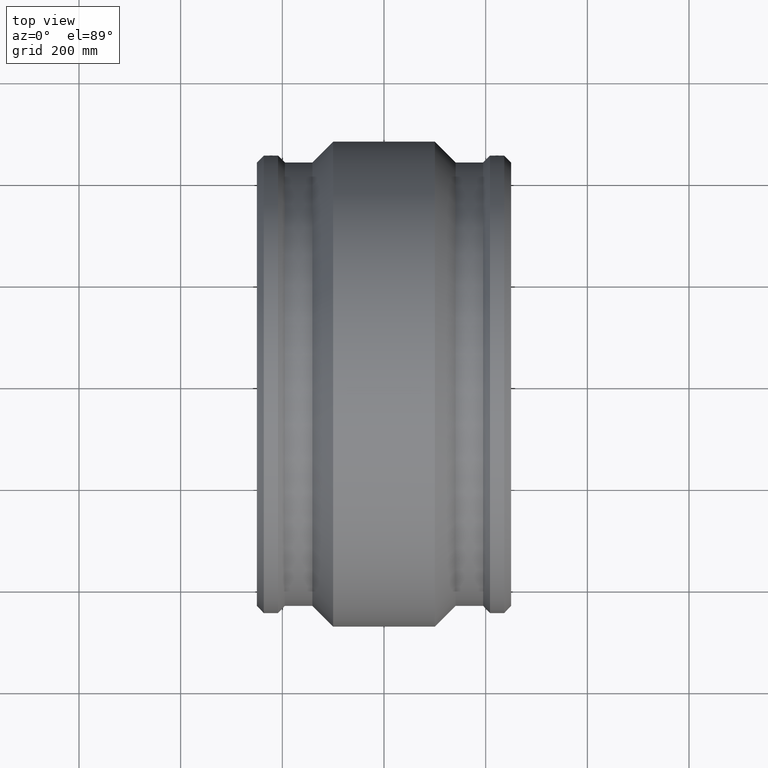
[diagram: clean part render]
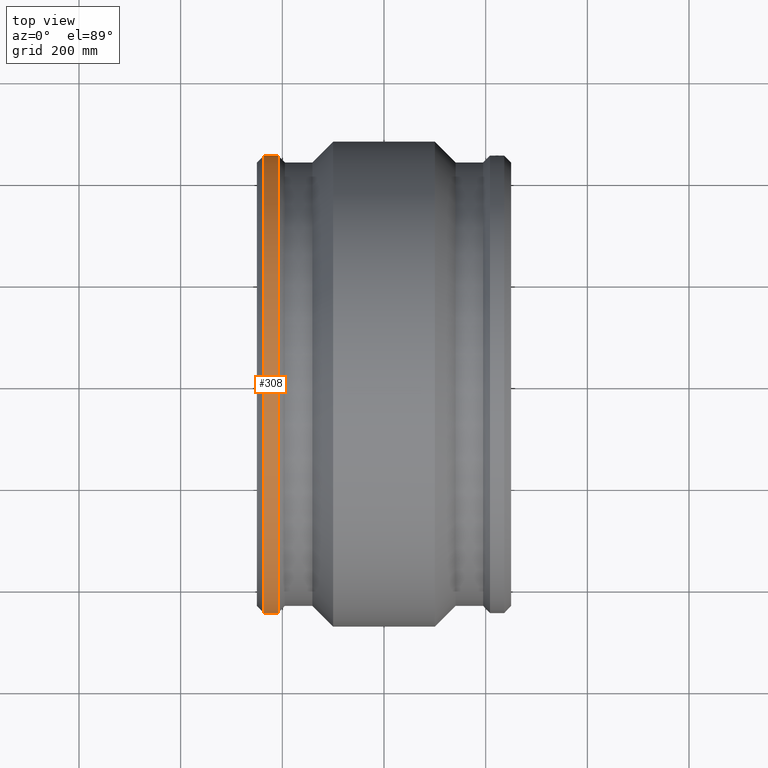
[diagram: same view with one face highlighted and labeled with its STEP entity id]
A machine part, top view. The second image highlights one B-rep face of the part: STEP entity #308.
In plain terms, the highlighted cylindrical surface (bore or boss wall) has radius 450 mm, axis along (1, 0, 0).
Its self-contained STEP definition (entity closure, byte-faithful):
#23=B_SPLINE_CURVE_WITH_KNOTS('',3,(#567,#568,#569,#570,#571,#572,#573,
#574,#575,#576,#577,#578,#579,#580,#581,#582,#583,#584,#585),
 .UNSPECIFIED.,.F.,.F.,(4,2,2,2,3,2,2,2,4),(-1.13008252744152,-0.847561895948779,
-0.565041264456037,-0.282520632228018,0.,0.282520632228018,0.565041264456036,
0.847561895948779,1.13008252744152),.UNSPECIFIED.);
#24=B_SPLINE_CURVE_WITH_KNOTS('',3,(#587,#588,#589,#590,#591,#592,#593,
#594,#595,#596,#597,#598,#599,#600,#601,#602,#603,#604),.UNSPECIFIED.,.F.,
 .F.,(4,2,2,2,2,2,2,2,4),(1.13008252744152,1.41260315893426,1.69512379042701,
1.97764442265502,2.26016505488304,2.54268568711106,2.82520631933908,3.10772695083182,
3.39024758232456),.UNSPECIFIED.);
#35=FACE_BOUND('',#117,.T.);
#36=FACE_BOUND('',#118,.T.);
#58=CYLINDRICAL_SURFACE('',#352,450.);
#78=FACE_OUTER_BOUND('',#116,.T.);
#116=EDGE_LOOP('',(#257));
#117=EDGE_LOOP('',(#258,#259));
#118=EDGE_LOOP('',(#260));
#157=CIRCLE('',#353,450.);
#158=CIRCLE('',#354,450.);
#180=VERTEX_POINT('',#559);
#181=VERTEX_POINT('',#560);
#183=VERTEX_POINT('',#606);
#184=VERTEX_POINT('',#608);
#211=EDGE_CURVE('',#181,#180,#23,.T.);
#212=EDGE_CURVE('',#180,#181,#24,.T.);
#213=EDGE_CURVE('',#183,#183,#157,.T.);
#214=EDGE_CURVE('',#184,#184,#158,.T.);
#257=ORIENTED_EDGE('',*,*,#213,.T.);
#258=ORIENTED_EDGE('',*,*,#212,.T.);
#259=ORIENTED_EDGE('',*,*,#211,.T.);
#260=ORIENTED_EDGE('',*,*,#214,.F.);
#308=ADVANCED_FACE('',(#78,#35,#36),#58,.T.);
#352=AXIS2_PLACEMENT_3D('',#605,#437,#438);
#353=AXIS2_PLACEMENT_3D('',#607,#439,#440);
#354=AXIS2_PLACEMENT_3D('',#609,#441,#442);
#437=DIRECTION('center_axis',(1.,1.83697019872103E-16,0.));
#438=DIRECTION('ref_axis',(-1.77635683940025E-16,1.,0.));
#439=DIRECTION('center_axis',(1.,1.83697019872103E-16,0.));
#440=DIRECTION('ref_axis',(0.,0.,-1.));
#441=DIRECTION('center_axis',(1.,1.83697019872103E-16,0.));
#442=DIRECTION('ref_axis',(0.,0.,-1.));
#559=CARTESIAN_POINT('',(-215.,450.,0.));
#560=CARTESIAN_POINT('',(-230.,450.,9.18485099360515E-16));
#567=CARTESIAN_POINT('Ctrl Pts',(-230.,450.,8.32667268468867E-16));
#568=CARTESIAN_POINT('Ctrl Pts',(-230.,450.,-0.941735438309141));
#569=CARTESIAN_POINT('Ctrl Pts',(-229.811790399302,449.996739822936,-1.94623005247852));
#570=CARTESIAN_POINT('Ctrl Pts',(-229.046382541299,449.984953856025,-3.79406983066214));
#571=CARTESIAN_POINT('Ctrl Pts',(-228.469185249615,449.976596982681,-4.63741646818301));
#572=CARTESIAN_POINT('Ctrl Pts',(-227.13741646645,449.960900847008,-5.96918525134821));
#573=CARTESIAN_POINT('Ctrl Pts',(-226.294069830014,449.952543467231,-6.54638254238657));
#574=CARTESIAN_POINT('Ctrl Pts',(-224.44623005378,449.940756342672,-7.31179039794435));
#575=CARTESIAN_POINT('Ctrl Pts',(-223.44173544076,449.937495659119,-7.5));
#576=CARTESIAN_POINT('Ctrl Pts',(-222.5,449.937495659119,-7.5));
#577=CARTESIAN_POINT('Ctrl Pts',(-221.55826455924,449.937495659119,-7.5));
#578=CARTESIAN_POINT('Ctrl Pts',(-220.55376994622,449.940756342672,-7.31179039794435));
#579=CARTESIAN_POINT('Ctrl Pts',(-218.705930169986,449.952543467231,-6.54638254238657));
#580=CARTESIAN_POINT('Ctrl Pts',(-217.86258353355,449.960900847008,-5.96918525134821));
#581=CARTESIAN_POINT('Ctrl Pts',(-216.530814750385,449.976596982681,-4.63741646818301));
#582=CARTESIAN_POINT('Ctrl Pts',(-215.953617458701,449.984953856025,-3.79406983066214));
#583=CARTESIAN_POINT('Ctrl Pts',(-215.188209600698,449.996739822936,-1.94623005247852));
#584=CARTESIAN_POINT('Ctrl Pts',(-215.,450.,-0.941735438309141));
#585=CARTESIAN_POINT('Ctrl Pts',(-215.,450.,2.77555756156289E-16));
#587=CARTESIAN_POINT('Ctrl Pts',(-215.,450.,2.4980018054066E-15));
#588=CARTESIAN_POINT('Ctrl Pts',(-215.,450.,0.941735438309143));
#589=CARTESIAN_POINT('Ctrl Pts',(-215.188209600698,449.996739822936,1.94623005247852));
#590=CARTESIAN_POINT('Ctrl Pts',(-215.953617458701,449.984953856025,3.79406983066214));
#591=CARTESIAN_POINT('Ctrl Pts',(-216.530814750385,449.976596982681,4.63741646818301));
#592=CARTESIAN_POINT('Ctrl Pts',(-217.86258353355,449.960900847008,5.96918525134821));
#593=CARTESIAN_POINT('Ctrl Pts',(-218.705930169986,449.952543467231,6.54638254238657));
#594=CARTESIAN_POINT('Ctrl Pts',(-220.55376994622,449.940756342672,7.31179039794435));
#595=CARTESIAN_POINT('Ctrl Pts',(-221.55826455924,449.937495659119,7.5));
#596=CARTESIAN_POINT('Ctrl Pts',(-223.44173544076,449.937495659119,7.5));
#597=CARTESIAN_POINT('Ctrl Pts',(-224.44623005378,449.940756342672,7.31179039794436));
#598=CARTESIAN_POINT('Ctrl Pts',(-226.294069830014,449.952543467231,6.54638254238656));
#599=CARTESIAN_POINT('Ctrl Pts',(-227.13741646645,449.960900847008,5.96918525134821));
#600=CARTESIAN_POINT('Ctrl Pts',(-228.469185249615,449.976596982681,4.63741646818301));
#601=CARTESIAN_POINT('Ctrl Pts',(-229.046382541299,449.984953856025,3.79406983066214));
#602=CARTESIAN_POINT('Ctrl Pts',(-229.811790399302,449.996739822936,1.94623005247852));
#603=CARTESIAN_POINT('Ctrl Pts',(-230.,450.,0.941735438309143));
#604=CARTESIAN_POINT('Ctrl Pts',(-230.,450.,1.11022302462516E-15));
#605=CARTESIAN_POINT('Origin',(-222.5,5.05166804648284E-15,0.));
#606=CARTESIAN_POINT('',(-236.5,450.,0.));
#607=CARTESIAN_POINT('Origin',(-236.5,2.47990976827341E-15,0.));
#608=CARTESIAN_POINT('',(-208.5,450.,0.));
#609=CARTESIAN_POINT('Origin',(-208.5,7.62342632469227E-15,0.));